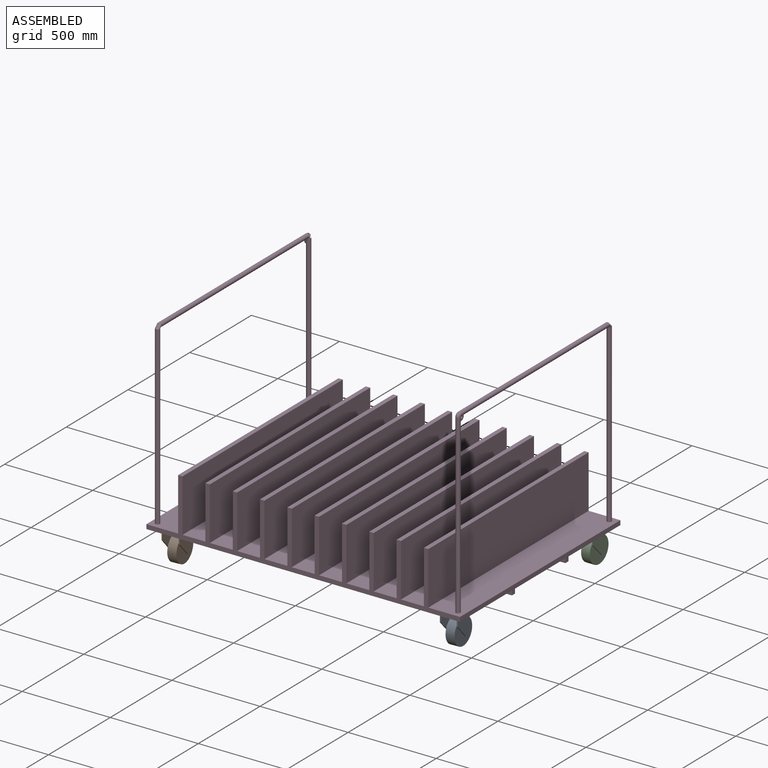
[diagram: assembled view]
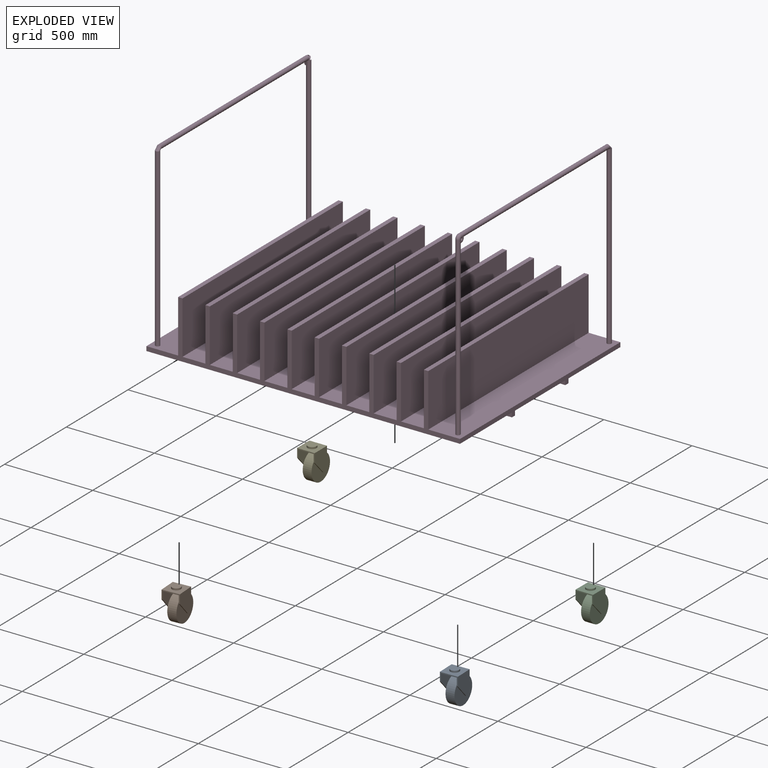
[diagram: exploded view]
GUIDED TOUR — MATED ASSEMBLY (Onshape document ab8dc49e5f1a447b827fc1dc, AutoMate assembly ab8dc49e5f1a447b827fc1dc_34ce1487d6dc6c3ff0c0f34f_7604f6123fe838a33c5e8247_default)

This assembly has 5 components, labeled P0..P4 below (a component is one placed occurrence of a part; the same part can appear more than once), held together by 8 mates. A mate is a constraint between two components; its type names the relative motion it leaves free:
  CYLINDRICAL — leaves both rotation about and translation along the listed axis free,
  PLANAR — leaves sliding in the plane through the listed point (normal = the listed direction) and rotation about that normal free.
Axis/direction vectors are unit vectors and 'through' points are millimeter coordinates, both in the assembly's world frame.

MATES
  1. PLANAR "Planar 4": P0 <-> P3, direction (0.000, 0.000, 1.000) through (839.98, -548.47, -10.00) mm
  2. CYLINDRICAL "Cylindrical 2": P4 <-> P3, axis (0.000, 0.000, -1.000) through (-790.00, 550.00, -5.00) mm
  3. PLANAR "Planar 3": P2 <-> P3, direction (0.000, 0.000, 1.000) through (790.00, 550.00, -10.00) mm
  4. PLANAR "Planar 1": P1 <-> P3, direction (0.000, 0.000, 1.000) through (-839.91, -553.07, -10.00) mm
  5. CYLINDRICAL "Cylindrical 4": P0 <-> P3, axis (0.000, 0.000, -1.000) through (790.00, -550.00, -5.00) mm
  6. CYLINDRICAL "Cylindrical 1": P3 <-> P1, axis (0.000, 0.000, 1.000) through (-790.00, -550.00, -5.00) mm
  7. PLANAR "Planar 2": P4 <-> P3, direction (0.000, 0.000, 1.000) through (-790.00, 550.00, -10.00) mm
  8. CYLINDRICAL "Cylindrical 3": P2 <-> P3, axis (0.000, 0.000, -1.000) through (790.00, 550.00, -5.00) mm

ASSEMBLY ORDER
  1. P4 — the base component [order verified]
  2. P2 [order verified]
  3. P1 [order verified]
  4. P0 [order verified]
  5. P3 [order verified]
Order-tag legend:
  [order verified] — this step's position reverses a verified removal order: the component was checked to insert without passing through the ones already placed.

Of the 5 components, 4 carry the full construction recipe — the FeatureScript program that regenerates the part's solid from scratch; the rest are supplied as boundary geometry only.
Each toured component is shown spotlighted twice — in the assembled view, then in the exploded view, where a leader line traces a displaced component back to its assembled socket (saturated green if recipe-attached, orange if geometry-only; every other component desaturated gray) — followed by its recipe or geometry summary and the mates that hold it.
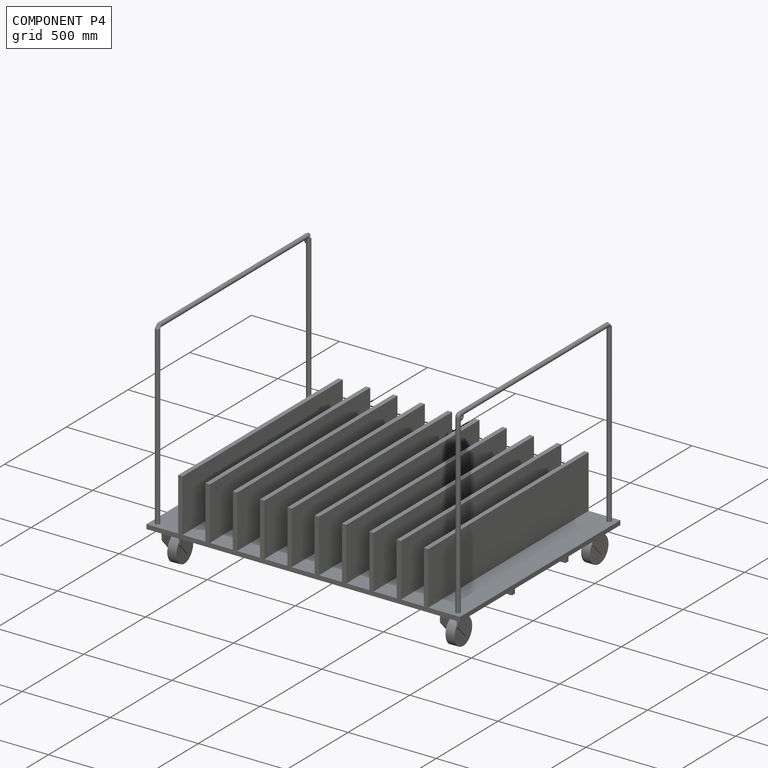
[diagram: component P4 — assembled]
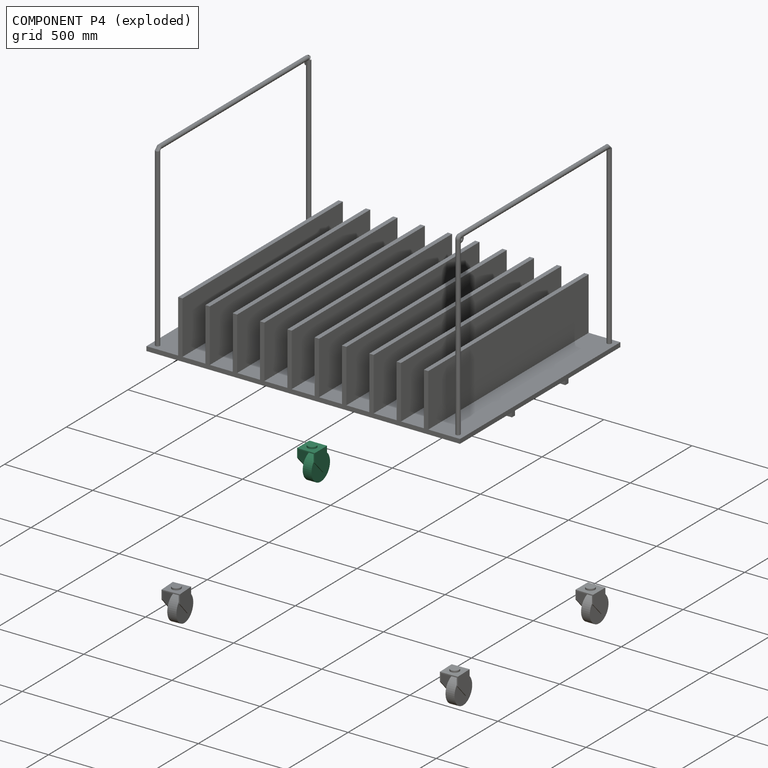
[diagram: component P4 — exploded]
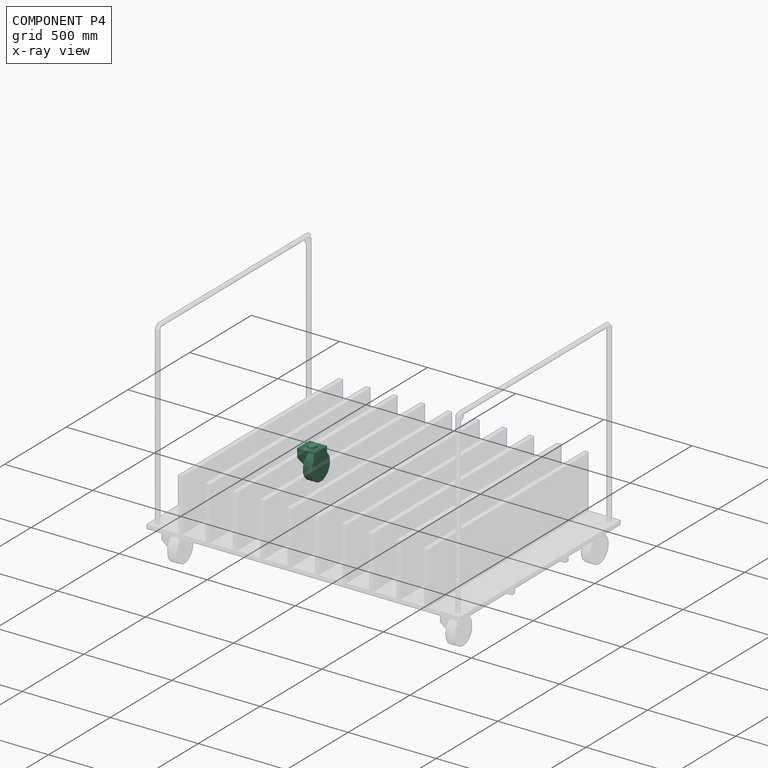
[diagram: component P4 — x-ray view]
COMPONENT P4 — same part as P0 (CADFS 00421554); its construction recipe is shown at P0.
Held by: CYLINDRICAL mate "Cylindrical 2" to P3; PLANAR mate "Planar 2" to P3.
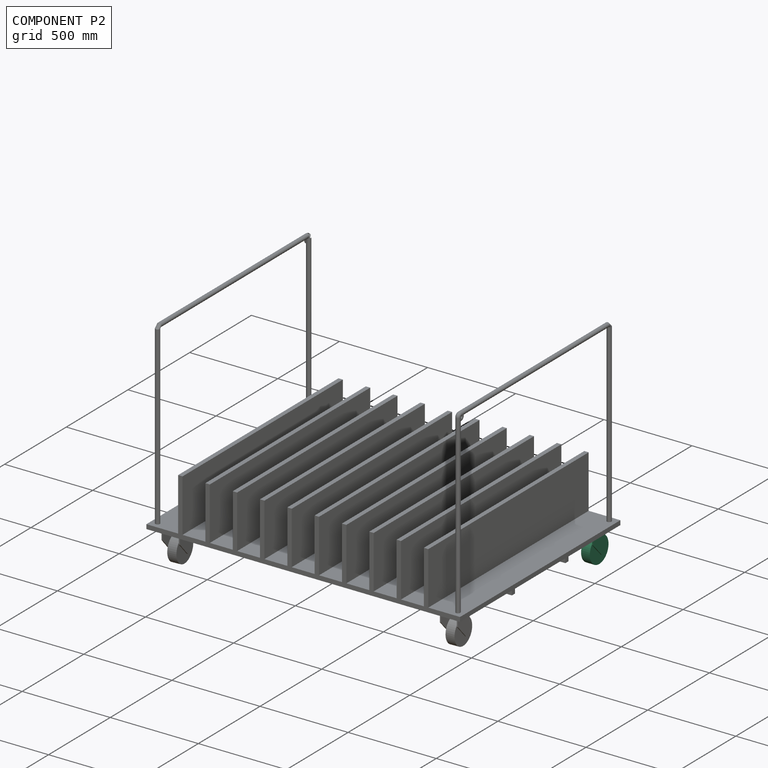
[diagram: component P2 — assembled]
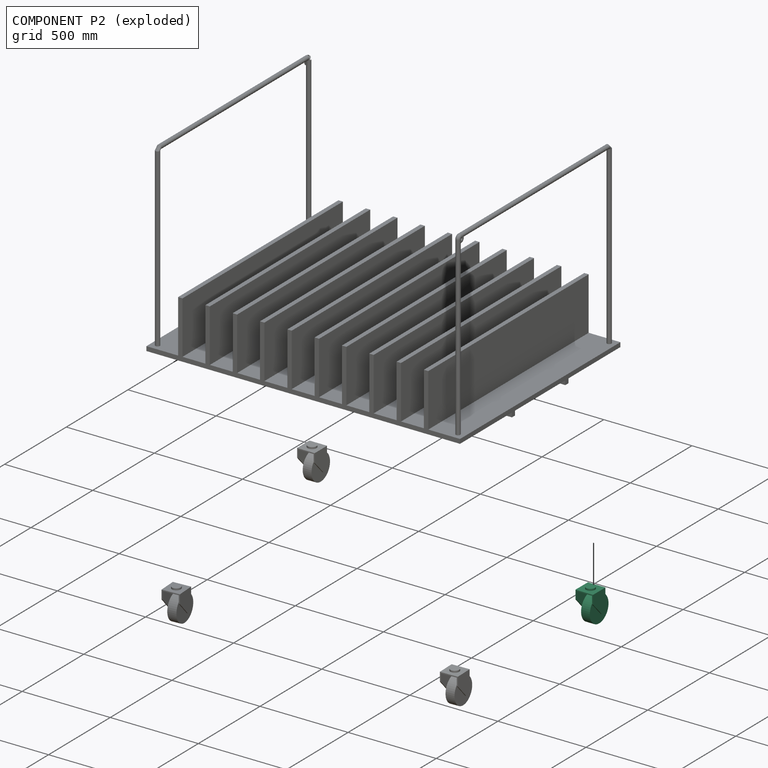
[diagram: component P2 — exploded]
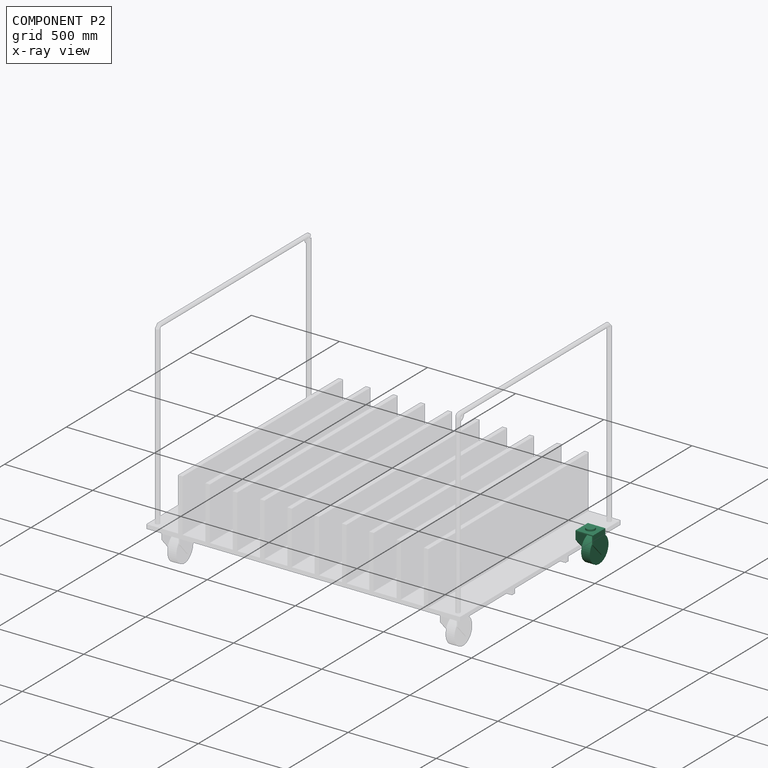
[diagram: component P2 — x-ray view]
COMPONENT P2 — same part as P0 (CADFS 00421554); its construction recipe is shown at P0.
Held by: PLANAR mate "Planar 3" to P3; CYLINDRICAL mate "Cylindrical 3" to P3.
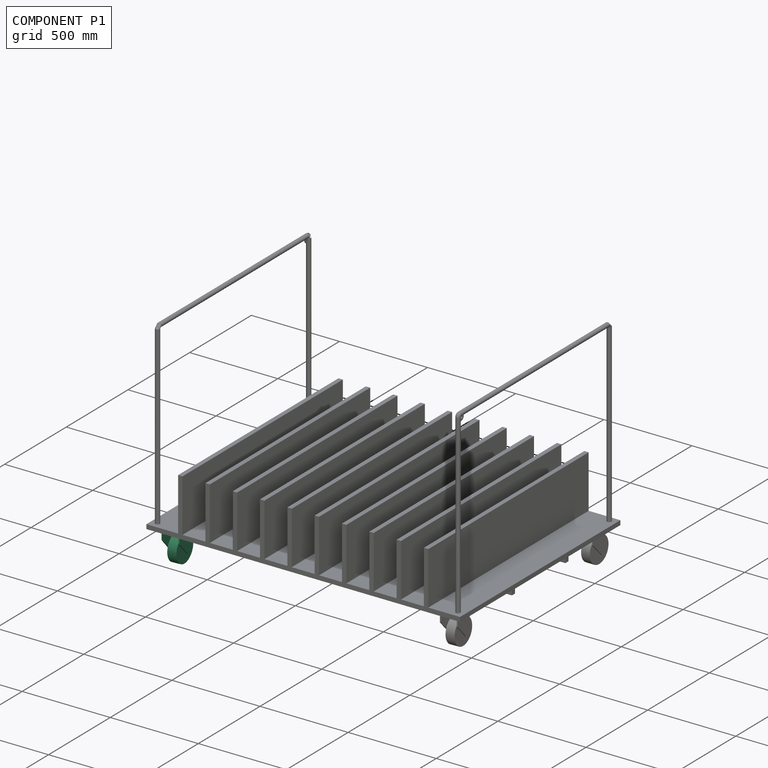
[diagram: component P1 — assembled]
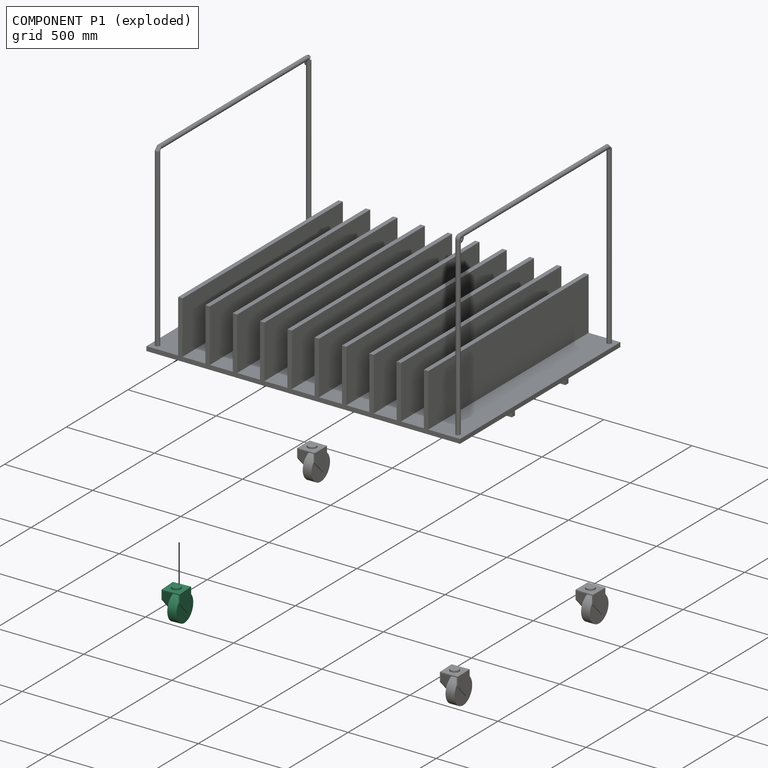
[diagram: component P1 — exploded]
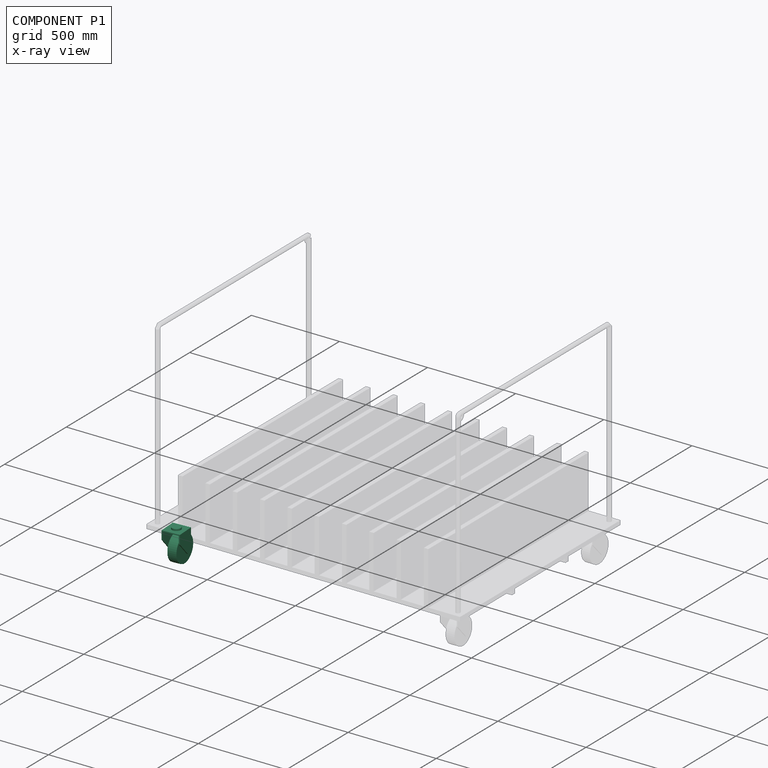
[diagram: component P1 — x-ray view]
COMPONENT P1 — same part as P0 (CADFS 00421554); its construction recipe is shown at P0.
Held by: PLANAR mate "Planar 1" to P3; CYLINDRICAL mate "Cylindrical 1" to P3.
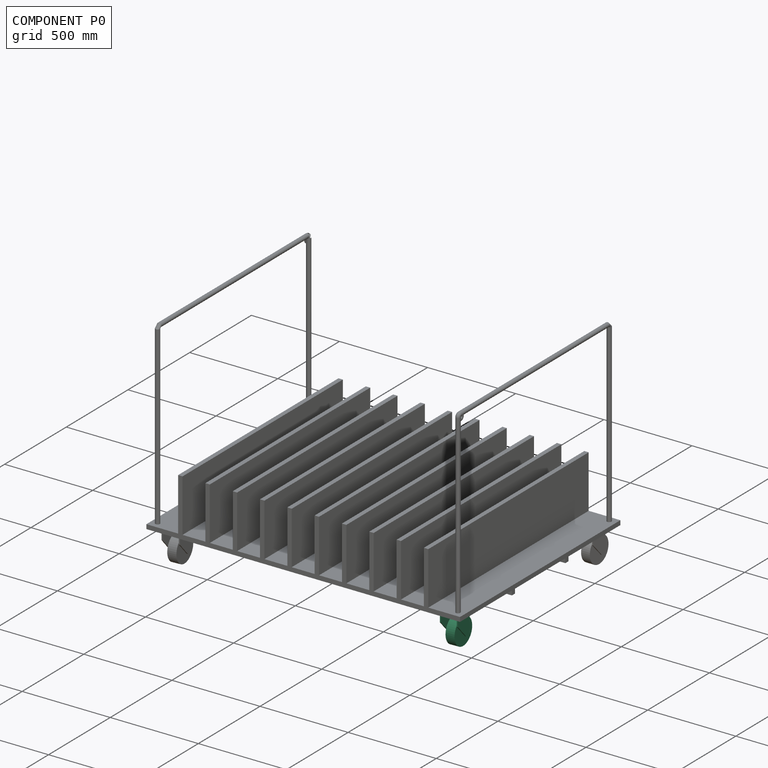
[diagram: component P0 — assembled]
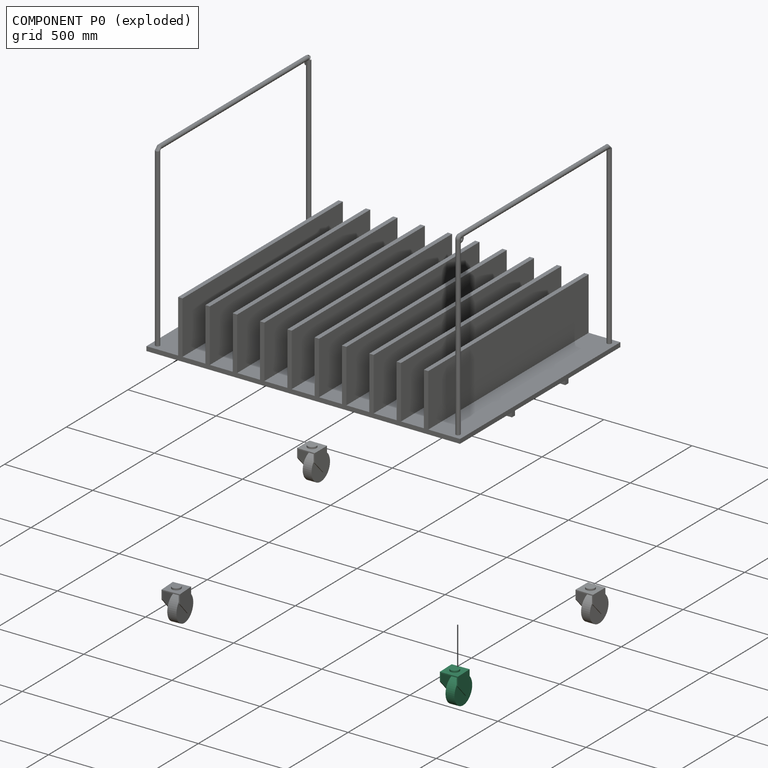
[diagram: component P0 — exploded]
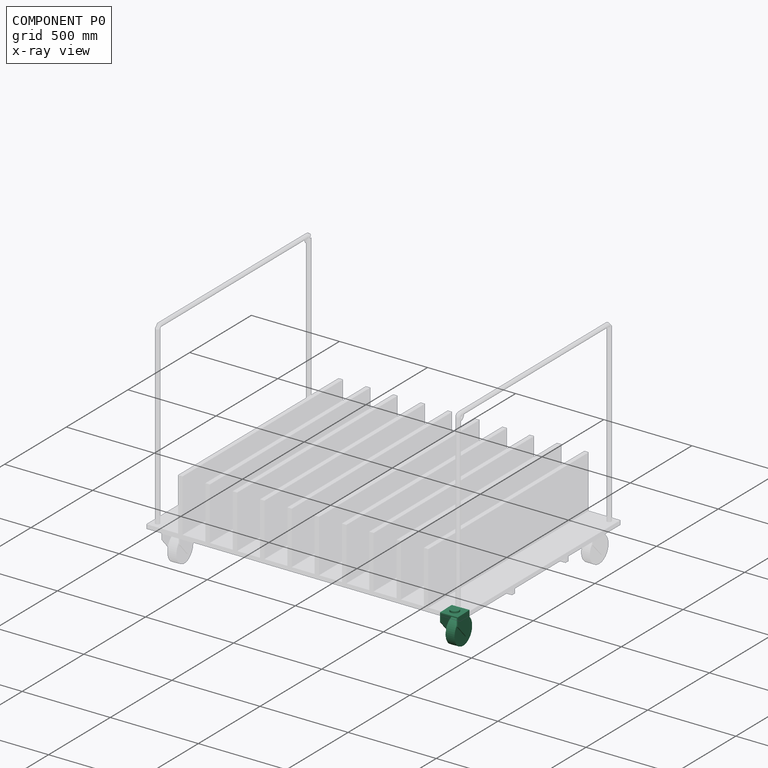
[diagram: component P0 — x-ray view]
COMPONENT P0 — recipe-attached (CADFS 00421554, mesh-verified: the recipe's output STEP matches this component's geometry to below the mesh-comparison resolution (tessellation chordal tolerance ~0.407 mm)).
Held by: PLANAR mate "Planar 4" to P3; CYLINDRICAL mate "Cylindrical 4" to P3.
Construction recipe (FeatureScript — the CAD program that rebuilds this solid; sketch coordinates are in the units given by the * unit suffixes, e.g. mm):

FeatureScript 1511;
import(path : "onshape/std/geometry.fs", version : "1511.0");
import(path : "onshape/std/common.fs", version : "1511.0");
const mm = millimeter;
const VERTEX = EntityType.VERTEX;
const EDGE = EntityType.EDGE;
const FACE = EntityType.FACE;
const BODY = EntityType.BODY;
function v(x, y){return vector(x, y);}
function OD(order){return orderDisambiguation(order);}
function OSD(set){return originalSetDisambiguation(set);}
function TD(topology){return topologyDisambiguation(topology);}
function TDD(query){return trueDependencyDisambiguation(query);}
function sQuery(a, b, c) {return sketchEntityQuery(a, b, c);}

annotation { "Feature Type Name" : "Feature", "Feature Type Description" : "" }
export const myFeature = defineFeature(function(context is Context, id is Id, definition is map)
    precondition{}
    {
        {
            var Q0;
            Q0=qCreatedBy(makeId("Right.planeOp"),FACE);
            var sketch = newSketch(context, id + "F0", { "sketchPlane" : qUnion([Q0])});
            skLineSegment(sketch, "E0.bottom", {"start": v(0, 0) * mm, "end": v(-100, 0) * mm});
            skLineSegment(sketch, "E0.top", {"start": v(0, -125) * mm, "end": v(-30, -125) * mm});
            skLineSegment(sketch, "E0.left", {"start": v(0, 0) * mm, "end": v(0, -125) * mm});
            skLineSegment(sketch, "E0.right", {"start": v(-100, 0) * mm, "end": v(-100, -50) * mm});
            skLineSegment(sketch, "E1", {"start": v(-100, -50) * mm, "end": v(-30, -125) * mm});
            skSolve(sketch);
        }
        {
            var Q0;
            Q0 = qSketchRegion(id + "F0", true);
            extrude(context, id + "F1", {"entities" : qUnion([Q0]), "endBound" : BoundingType.SYMMETRIC, "depth" : 100 * mm});
        }
        {
            var Q0;
            Q0=makeQuery(id+"F1.opExtrude","SWEPT_FACE",FACE,{"disambiguationData":[OSD([sQuery(id+"F0.wireOp",EDGE,"E0.left")])]});
            var sketch = newSketch(context, id + "F2", { "sketchPlane" : qUnion([Q0])});
            skLineSegment(sketch, "E2.bottom", {"start": v(-44, -125) * mm, "end": v(44, -125) * mm});
            skLineSegment(sketch, "E2.top", {"start": v(-44, -6) * mm, "end": v(44, -6) * mm});
            skLineSegment(sketch, "E2.left", {"start": v(-44, -125) * mm, "end": v(-44, -6) * mm});
            skLineSegment(sketch, "E2.right", {"start": v(44, -125) * mm, "end": v(44, -6) * mm});
            skSolve(sketch);
        }
        {
            var Q0;
            Q0 = qSketchRegion(id + "F2", true);
            extrude(context, id + "F3", {"entities" : qUnion([Q0]), "operationType" : NewBodyOperationType.REMOVE, "endBound" : BoundingType.THROUGH_ALL, "oppositeDirection" : true, "depth" : 25 * mm});
        }
        {
            var Q0;
            Q0=makeQuery(id+"F3.boolean.opBoolean","COPY",FACE,{"derivedFrom":makeQuery(id+"F3.opExtrude","SWEPT_FACE",FACE,{"disambiguationData":[OSD([sQuery(id+"F2.wireOp",EDGE,"E2.left")])]})});
            var sketch = newSketch(context, id + "F4", { "sketchPlane" : qUnion([Q0])});
            skLineSegment(sketch, "E3.bottom", {"start": v(0, -125) * mm, "end": v(15, -125) * mm, "construction": true});
            skLineSegment(sketch, "E3.top", {"start": v(0, -110) * mm, "end": v(15, -110) * mm, "construction": true});
            skLineSegment(sketch, "E3.left", {"start": v(0, -125) * mm, "end": v(0, -110) * mm, "construction": true});
            skLineSegment(sketch, "E3.right", {"start": v(15, -125) * mm, "end": v(15, -110) * mm, "construction": true});
            skCircle(sketch, "E4", {"center": v(15, -110) * mm, "radius": 5 * mm});
            skSolve(sketch);
        }
        {
            var Q0;
            Q0 = qSketchRegion(id + "F4", true);
            extrude(context, id + "F5", {"entities" : qUnion([Q0]), "operationType" : NewBodyOperationType.ADD, "endBound" : BoundingType.UP_TO_NEXT, "depth" : 25 * mm});
        }
        {
            var Q0;
            Q0=makeQuery(id+"F1.opExtrude","SWEPT_FACE",FACE,{"disambiguationData":[OSD([sQuery(id+"F0.wireOp",EDGE,"E0.bottom")])]});
            var sketch = newSketch(context, id + "F6", { "sketchPlane" : qUnion([Q0])});
            skLineSegment(sketch, "E5", {"start": v(-50, -50) * mm, "end": v(0, -50) * mm, "construction": true});
            skLineSegment(sketch, "E6", {"start": v(0, -50) * mm, "end": v(0, 0) * mm, "construction": true});
            skCircle(sketch, "E7", {"center": v(0, -50) * mm, "radius": 25 * mm});
            skSolve(sketch);
        }
        {
            var Q0;
            Q0 = qSketchRegion(id + "F6", true);
            extrude(context, id + "F7", {"entities" : qUnion([Q0]), "operationType" : NewBodyOperationType.ADD, "depth" : 10 * mm});
        }
        {
            var Q0;
            Q0=qCreatedBy(makeId("Right.planeOp"),FACE);
            var sketch = newSketch(context, id + "F8", { "sketchPlane" : qUnion([Q0])});
            skCircle(sketch, "E8", {"center": v(-15, -110) * mm, "radius": 75 * mm});
            skSolve(sketch);
        }
        {
            var Q0;
            Q0 = qSketchRegion(id + "F8", true);
            extrude(context, id + "F9", {"entities" : qUnion([Q0]), "operationType" : NewBodyOperationType.ADD, "endBound" : BoundingType.SYMMETRIC, "depth" : 50 * mm});
        }
    });
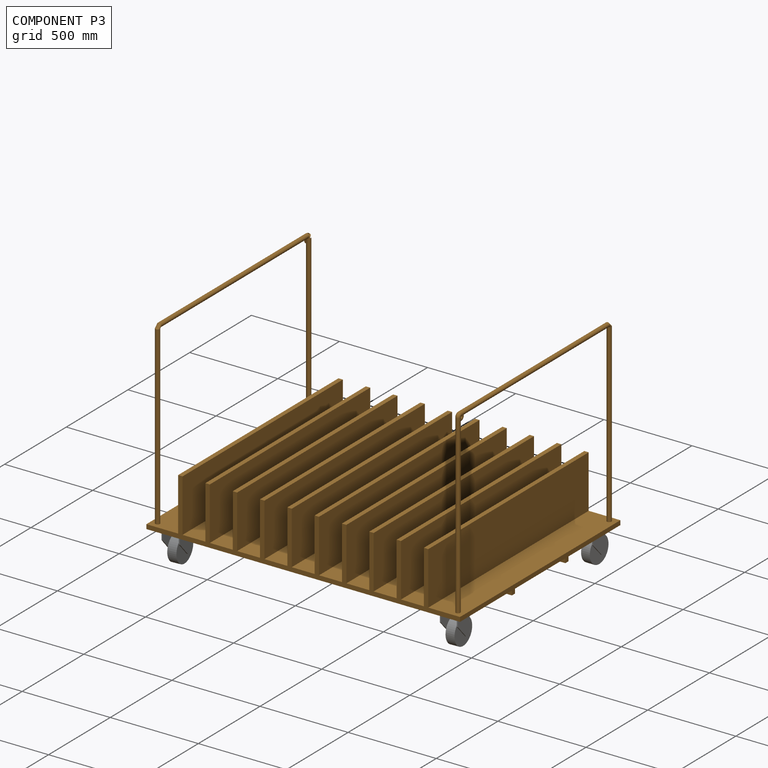
[diagram: component P3 — assembled]
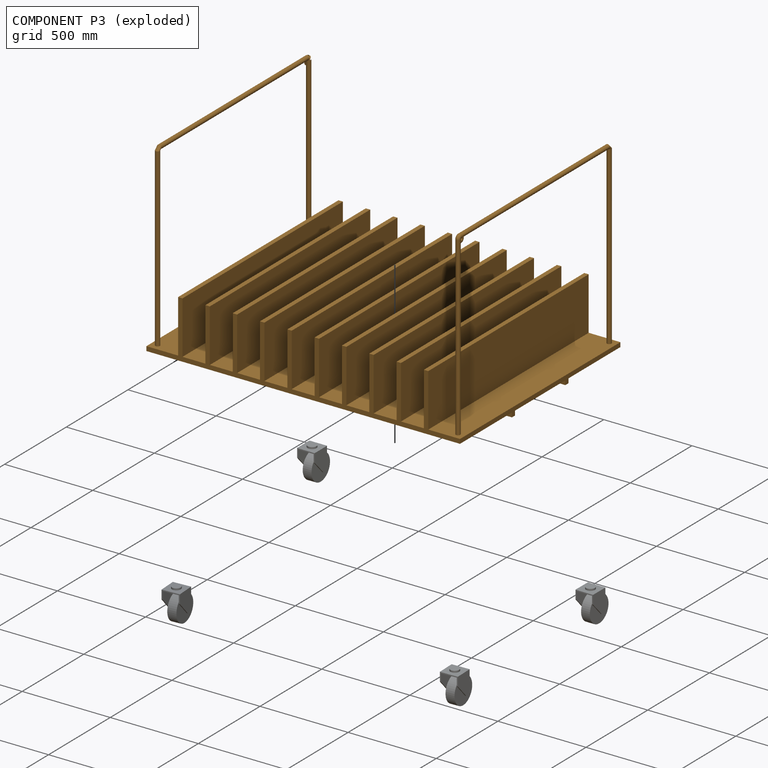
[diagram: component P3 — exploded]
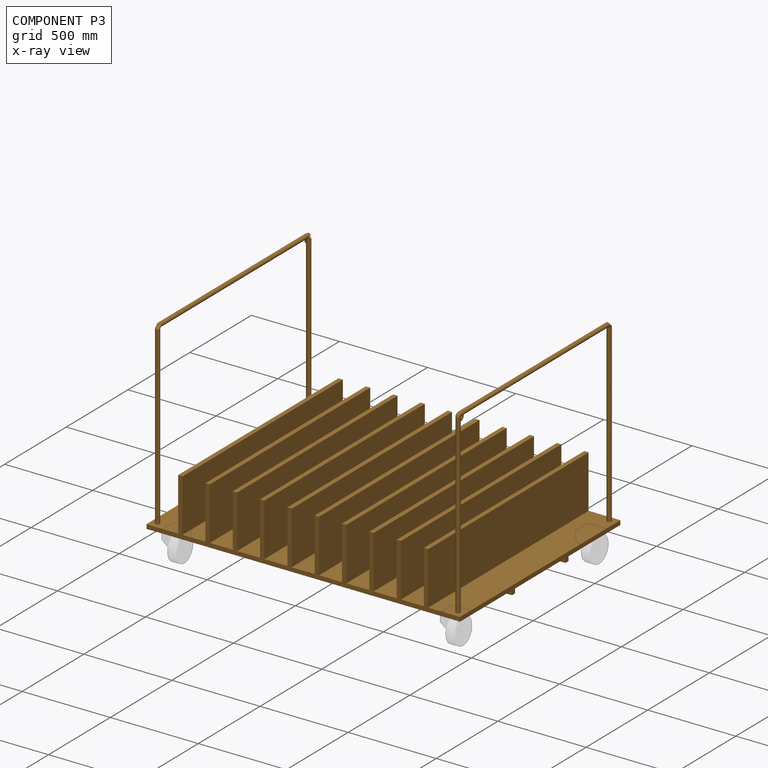
[diagram: component P3 — x-ray view]
COMPONENT P3 — geometry summary (no construction recipe available for this part):
  bounding box: 1780.0 x 1300.0 x 1077.1 mm
  B-rep topology: 1 solid, 80 faces, 428 edges
  volume: 161383464 mm^3 (6% of its bounding box)
  symmetry: 2-fold rotationally symmetric about the z axis; mirror-symmetric across its x mid-plane, y mid-plane
Held by: PLANAR mate "Planar 4" to P0; CYLINDRICAL mate "Cylindrical 2" to P4; PLANAR mate "Planar 3" to P2; PLANAR mate "Planar 1" to P1; CYLINDRICAL mate "Cylindrical 4" to P0; CYLINDRICAL mate "Cylindrical 1" to P1; PLANAR mate "Planar 2" to P4; CYLINDRICAL mate "Cylindrical 3" to P2.
PROVENANCE & LICENSES
Assembly (occurrences, transforms, mates, per-part STEP geometry): AutoMate dataset, Zenodo record 7776208, CC0.
Construction recipes: CADFS (HuggingFace VladPyatov/CADFS, CC-BY-4.0, layered over the ABC dataset), FeatureScript reconstruction programs keyed by ABC model id.
Join: ABC meta listings map ABC model id -> Onshape documentId; within a shared document, parts are matched by geometric signature (bounding-box dims + volume at 0.1% relative tolerance, exact B-rep face/solid counts).
Verification: 4 of this assembly's 5 components carry a recipe attachment, and every attachment is mesh-verified: the CADFS STEP and the AutoMate member STEP were compared as meshes in their shared local frame (symmetric sampled-point-to-mesh distance); worst across the 4 attachments: below the mesh-comparison resolution (tessellation chordal tolerance ~0.407 mm) on a 271 mm part.
Renders: orthographic iso camera (az 35 / el 25); the floor grid conveys scale (grid pitch printed in each image; no ruler). In the exploded view each component is displaced by its stored offset vector: the offsets alone carry the explosion direction (mate normal/axis signs are not orientation cues and do not encode it), and separation distances are assigned per mate-chain, not proportionally to assembly-order depth.
